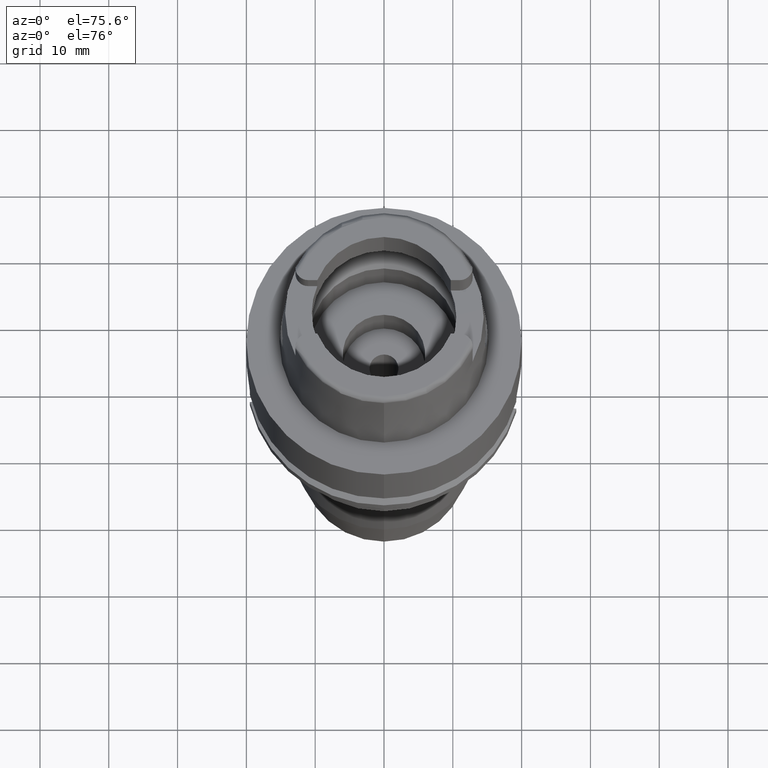
[diagram: clean part render]
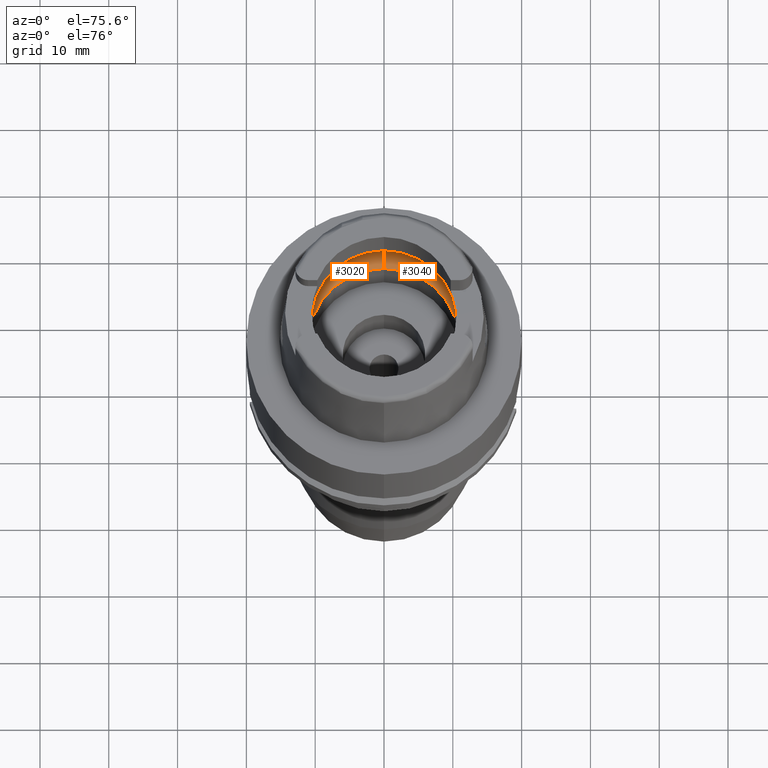
[diagram: same view with one multi-face feature highlighted, each face labeled with its STEP entity id]
A machine part, auxiliary view. The highlighted faces form ONE feature: a constant-radius fillet chain: 2 tangent blend faces with common blend radius 5 mm. The faces share edges in the B-rep.
Their STEP definitions:
[1] entity #3040 (Torus):
#612=CARTESIAN_POINT('',(0.E0,-7.75E0,3.933312163513E0));
#613=DIRECTION('',(-1.E0,0.E0,0.E0));
#614=DIRECTION('',(0.E0,-6.3E-1,-7.765951326141E-1));
#615=AXIS2_PLACEMENT_3D('',#612,#613,#614);
#628=CARTESIAN_POINT('',(0.E0,0.E0,3.933312163513E0));
#629=DIRECTION('',(0.E0,0.E0,-1.E0));
#630=DIRECTION('',(9.968615066513E-1,-7.916524841634E-2,0.E0));
#631=AXIS2_PLACEMENT_3D('',#628,#629,#630);
#636=CARTESIAN_POINT('',(0.E0,0.E0,5.033650044226E-2));
#637=DIRECTION('',(0.E0,0.E0,1.E0));
#638=DIRECTION('',(0.E0,-1.E0,0.E0));
#639=AXIS2_PLACEMENT_3D('',#636,#637,#638);
#644=CARTESIAN_POINT('',(0.E0,7.75E0,3.933312163513E0));
#645=DIRECTION('',(1.E0,0.E0,0.E0));
#646=DIRECTION('',(0.E0,6.3E-1,-7.765951326141E-1));
#647=AXIS2_PLACEMENT_3D('',#644,#645,#646);
#652=CARTESIAN_POINT('',(0.E0,0.E0,3.933312163513E0));
#653=DIRECTION('',(0.E0,0.E0,-1.E0));
#654=DIRECTION('',(0.E0,1.E0,0.E0));
#655=AXIS2_PLACEMENT_3D('',#652,#653,#654);
#672=CARTESIAN_POINT('',(1.270998420980E1,-1.009356917308E0,3.933312163513E0));
#677=CARTESIAN_POINT('',(1.270998420980E1,-1.009356917308E0,3.933312163513E0));
#678=CARTESIAN_POINT('',(1.271823992229E1,-9.053996614193E-1,3.882540114884E0));
#679=CARTESIAN_POINT('',(1.273127898688E1,-6.895265527134E-1,3.796561039673E0));
#680=CARTESIAN_POINT('',(1.274222041562E1,-3.487706031438E-1,3.717658828630E0));
#681=CARTESIAN_POINT('',(1.274455357708E1,-1.162973087293E-1,3.7E0));
#682=CARTESIAN_POINT('',(1.274455357708E1,0.E0,3.7E0));
#720=CARTESIAN_POINT('',(1.270998420980E1,1.009356917308E0,3.933312163513E0));
#763=CARTESIAN_POINT('',(1.274455357708E1,0.E0,3.7E0));
#764=CARTESIAN_POINT('',(1.274455357708E1,1.162979897730E-1,3.7E0));
#765=CARTESIAN_POINT('',(1.274222037900E1,3.487721522136E-1,3.717659102625E0));
#766=CARTESIAN_POINT('',(1.273127898558E1,6.895262863333E-1,3.796561024629E0));
#767=CARTESIAN_POINT('',(1.271823993085E1,9.053995535543E-1,3.882540062203E0));
#768=CARTESIAN_POINT('',(1.270998420980E1,1.009356917308E0,3.933312163513E0));
#2378=CARTESIAN_POINT('',(0.E0,-1.275E1,3.933312163513E0));
#2379=VERTEX_POINT('',#2378);
#2380=CARTESIAN_POINT('',(0.E0,1.275E1,3.933312163513E0));
#2381=VERTEX_POINT('',#2380);
#2387=VERTEX_POINT('',#672);
#2388=VERTEX_POINT('',#682);
#2389=VERTEX_POINT('',#720);
#2390=CARTESIAN_POINT('',(0.E0,1.09E1,5.033650044226E-2));
#2391=VERTEX_POINT('',#2390);
#2392=CARTESIAN_POINT('',(0.E0,-1.09E1,5.033650044226E-2));
#2393=VERTEX_POINT('',#2392);
#3021=CARTESIAN_POINT('',(0.E0,0.E0,3.933312163513E0));
#3022=DIRECTION('',(0.E0,0.E0,1.E0));
#3023=DIRECTION('',(0.E0,1.E0,0.E0));
#3024=AXIS2_PLACEMENT_3D('',#3021,#3022,#3023);
#3025=TOROIDAL_SURFACE('',#3024,7.75E0,5.E0);
#3027=ORIENTED_EDGE('',*,*,#3026,.F.);
#3029=ORIENTED_EDGE('',*,*,#3028,.T.);
#3030=ORIENTED_EDGE('',*,*,#3015,.F.);
#3032=ORIENTED_EDGE('',*,*,#3031,.T.);
#3033=ORIENTED_EDGE('',*,*,#3011,.T.);
#3035=ORIENTED_EDGE('',*,*,#3034,.T.);
#3037=ORIENTED_EDGE('',*,*,#3036,.F.);
#3038=EDGE_LOOP('',(#3027,#3029,#3030,#3032,#3033,#3035,#3037));
#3039=FACE_OUTER_BOUND('',#3038,.F.);
#616=CIRCLE('',#615,5.E0);
#632=CIRCLE('',#631,1.275E1);
#640=CIRCLE('',#639,1.09E1);
#648=CIRCLE('',#647,5.E0);
#656=CIRCLE('',#655,1.275E1);
#683=B_SPLINE_CURVE_WITH_KNOTS('',3,(#677,#678,#679,#680,#681,#682),
.UNSPECIFIED.,.F.,.F.,(4,1,1,4),(0.E0,3.333333333333E-1,6.666666666667E-1,1.E0),
.UNSPECIFIED.);
#769=B_SPLINE_CURVE_WITH_KNOTS('',3,(#763,#764,#765,#766,#767,#768),
.UNSPECIFIED.,.F.,.F.,(4,1,1,4),(0.E0,3.333333333333E-1,6.666666666667E-1,1.E0),
.UNSPECIFIED.);
#3011=EDGE_CURVE('',#2391,#2381,#648,.T.);
#3015=EDGE_CURVE('',#2393,#2379,#616,.T.);
#3026=EDGE_CURVE('',#2387,#2388,#683,.T.);
#3028=EDGE_CURVE('',#2387,#2379,#632,.T.);
#3031=EDGE_CURVE('',#2393,#2391,#640,.T.);
#3034=EDGE_CURVE('',#2381,#2389,#656,.T.);
#3036=EDGE_CURVE('',#2388,#2389,#769,.T.);
#3040=ADVANCED_FACE('',(#3039),#3025,.F.);
[2] entity #3020 (Torus):
#490=CARTESIAN_POINT('',(-1.270998420980E1,-1.009356917308E0,3.933312163513E0));
#533=CARTESIAN_POINT('',(-1.274455357708E1,0.E0,3.7E0));
#534=CARTESIAN_POINT('',(-1.274455357708E1,-1.162973693665E-1,3.7E0));
#535=CARTESIAN_POINT('',(-1.274222041320E1,-3.487707441564E-1,
3.717658847055E0));
#536=CARTESIAN_POINT('',(-1.273127898031E1,-6.895266876483E-1,
3.796561085127E0));
#537=CARTESIAN_POINT('',(-1.271823991796E1,-9.053997158809E-1,
3.882540141482E0));
#538=CARTESIAN_POINT('',(-1.270998420980E1,-1.009356917308E0,3.933312163513E0));
#560=CARTESIAN_POINT('',(-1.270998420980E1,1.009356917308E0,3.933312163513E0));
#561=CARTESIAN_POINT('',(-1.271823993509E1,9.053995001772E-1,3.882540036134E0));
#562=CARTESIAN_POINT('',(-1.273127899201E1,6.895261540854E-1,3.796560980080E0));
#563=CARTESIAN_POINT('',(-1.274222038137E1,3.487720140142E-1,3.717659084568E0));
#564=CARTESIAN_POINT('',(-1.274455357708E1,1.162979303455E-1,3.7E0));
#565=CARTESIAN_POINT('',(-1.274455357708E1,0.E0,3.7E0));
#596=CARTESIAN_POINT('',(0.E0,0.E0,3.933312163513E0));
#597=DIRECTION('',(0.E0,0.E0,-1.E0));
#598=DIRECTION('',(-9.968615066513E-1,7.916524841634E-2,0.E0));
#599=AXIS2_PLACEMENT_3D('',#596,#597,#598);
#604=CARTESIAN_POINT('',(0.E0,0.E0,5.033650044226E-2));
#605=DIRECTION('',(0.E0,0.E0,1.E0));
#606=DIRECTION('',(0.E0,1.E0,0.E0));
#607=AXIS2_PLACEMENT_3D('',#604,#605,#606);
#612=CARTESIAN_POINT('',(0.E0,-7.75E0,3.933312163513E0));
#613=DIRECTION('',(-1.E0,0.E0,0.E0));
#614=DIRECTION('',(0.E0,-6.3E-1,-7.765951326141E-1));
#615=AXIS2_PLACEMENT_3D('',#612,#613,#614);
#620=CARTESIAN_POINT('',(0.E0,0.E0,3.933312163513E0));
#621=DIRECTION('',(0.E0,0.E0,-1.E0));
#622=DIRECTION('',(0.E0,-1.E0,0.E0));
#623=AXIS2_PLACEMENT_3D('',#620,#621,#622);
#644=CARTESIAN_POINT('',(0.E0,7.75E0,3.933312163513E0));
#645=DIRECTION('',(1.E0,0.E0,0.E0));
#646=DIRECTION('',(0.E0,6.3E-1,-7.765951326141E-1));
#647=AXIS2_PLACEMENT_3D('',#644,#645,#646);
#2376=VERTEX_POINT('',#490);
#2378=CARTESIAN_POINT('',(0.E0,-1.275E1,3.933312163513E0));
#2379=VERTEX_POINT('',#2378);
#2380=CARTESIAN_POINT('',(0.E0,1.275E1,3.933312163513E0));
#2381=VERTEX_POINT('',#2380);
#2382=CARTESIAN_POINT('',(-1.270998420980E1,1.009356917308E0,3.933312163513E0));
#2383=VERTEX_POINT('',#2382);
#2384=CARTESIAN_POINT('',(-1.274455357708E1,0.E0,3.7E0));
#2385=VERTEX_POINT('',#2384);
#2390=CARTESIAN_POINT('',(0.E0,1.09E1,5.033650044226E-2));
#2391=VERTEX_POINT('',#2390);
#2392=CARTESIAN_POINT('',(0.E0,-1.09E1,5.033650044226E-2));
#2393=VERTEX_POINT('',#2392);
#3003=CARTESIAN_POINT('',(0.E0,0.E0,3.933312163513E0));
#3004=DIRECTION('',(0.E0,0.E0,1.E0));
#3005=DIRECTION('',(0.E0,1.E0,0.E0));
#3006=AXIS2_PLACEMENT_3D('',#3003,#3004,#3005);
#3007=TOROIDAL_SURFACE('',#3006,7.75E0,5.E0);
#3008=ORIENTED_EDGE('',*,*,#2984,.F.);
#3009=ORIENTED_EDGE('',*,*,#2995,.F.);
#3010=ORIENTED_EDGE('',*,*,#2966,.T.);
#3012=ORIENTED_EDGE('',*,*,#3011,.F.);
#3014=ORIENTED_EDGE('',*,*,#3013,.T.);
#3016=ORIENTED_EDGE('',*,*,#3015,.T.);
#3017=ORIENTED_EDGE('',*,*,#2959,.T.);
#3018=EDGE_LOOP('',(#3008,#3009,#3010,#3012,#3014,#3016,#3017));
#3019=FACE_OUTER_BOUND('',#3018,.F.);
#539=B_SPLINE_CURVE_WITH_KNOTS('',3,(#533,#534,#535,#536,#537,#538),
.UNSPECIFIED.,.F.,.F.,(4,1,1,4),(0.E0,3.333333333333E-1,6.666666666667E-1,1.E0),
.UNSPECIFIED.);
#566=B_SPLINE_CURVE_WITH_KNOTS('',3,(#560,#561,#562,#563,#564,#565),
.UNSPECIFIED.,.F.,.F.,(4,1,1,4),(0.E0,3.333333333333E-1,6.666666666667E-1,1.E0),
.UNSPECIFIED.);
#600=CIRCLE('',#599,1.275E1);
#608=CIRCLE('',#607,1.09E1);
#616=CIRCLE('',#615,5.E0);
#624=CIRCLE('',#623,1.275E1);
#648=CIRCLE('',#647,5.E0);
#2959=EDGE_CURVE('',#2379,#2376,#624,.T.);
#2966=EDGE_CURVE('',#2383,#2381,#600,.T.);
#2984=EDGE_CURVE('',#2385,#2376,#539,.T.);
#2995=EDGE_CURVE('',#2383,#2385,#566,.T.);
#3011=EDGE_CURVE('',#2391,#2381,#648,.T.);
#3013=EDGE_CURVE('',#2391,#2393,#608,.T.);
#3015=EDGE_CURVE('',#2393,#2379,#616,.T.);
#3020=ADVANCED_FACE('',(#3019),#3007,.F.);